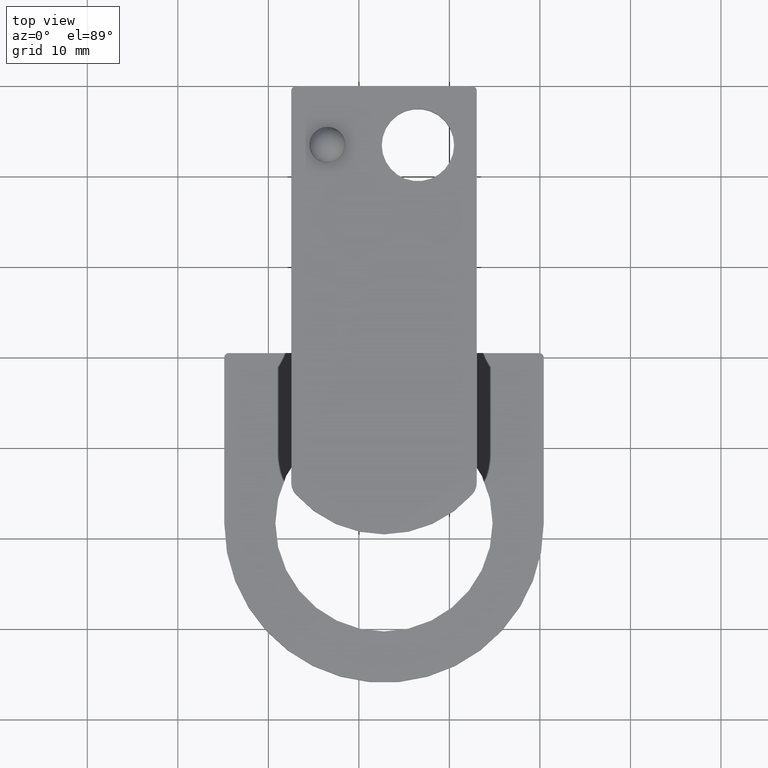
[diagram: clean part render]
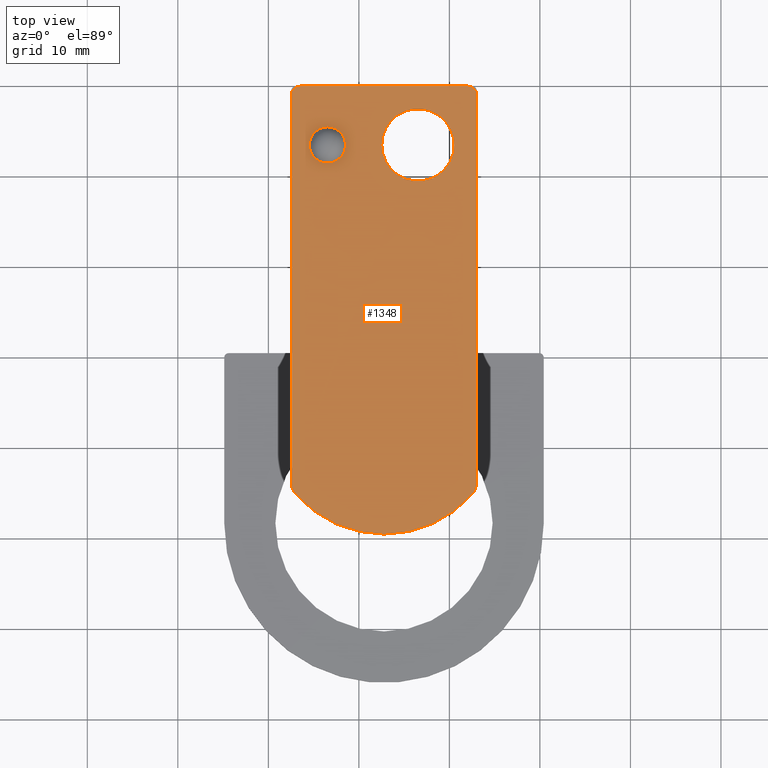
[diagram: same view with one face highlighted and labeled with its STEP entity id]
A machine part, top view. The second image highlights one B-rep face of the part: STEP entity #1348.
In plain terms, the highlighted planar face has unit normal (0, 0, 1).
Its self-contained STEP definition (entity closure, byte-faithful):
#996=CARTESIAN_POINT('',(16.590537004942465,16.195594190789066,1.500000000000000));
#997=VERTEX_POINT('',#996);
#998=CARTESIAN_POINT('',(17.590537004942465,15.195594190789063,1.500000000000000));
#999=VERTEX_POINT('',#998);
#1000=CARTESIAN_POINT('',(16.590537004942465,15.195594190789063,1.500000000000000));
#1001=DIRECTION('',(0.0,0.0,-1.000000000000000));
#1002=DIRECTION('',(0.707106781186548,0.707106781186548,0.0));
#1003=AXIS2_PLACEMENT_3D('',#1000,#1001,#1002);
#1004=CIRCLE('',#1003,1.000000000000000);
#1005=EDGE_CURVE('',#997,#999,#1004,.T.);
#1047=CARTESIAN_POINT('',(-1.909462995057537,16.195594190789066,1.500000000000000));
#1048=VERTEX_POINT('',#1047);
#1055=CARTESIAN_POINT('',(-1.909462995057537,16.195594190789066,1.500000000000000));
#1056=DIRECTION('',(1.0,0.0,0.0));
#1057=VECTOR('',#1056,18.500000000000004);
#1058=LINE('',#1055,#1057);
#1059=EDGE_CURVE('',#1048,#997,#1058,.T.);
#1151=CARTESIAN_POINT('',(-2.909462995057537,15.195594190789063,1.500000000000000));
#1152=VERTEX_POINT('',#1151);
#1153=CARTESIAN_POINT('',(-1.909462995057537,15.195594190789063,1.500000000000000));
#1154=DIRECTION('',(0.0,0.0,-1.0));
#1155=DIRECTION('',(-0.707106781186547,0.707106781186548,0.0));
#1156=AXIS2_PLACEMENT_3D('',#1153,#1154,#1155);
#1157=CIRCLE('',#1156,1.000000000000000);
#1158=EDGE_CURVE('',#1152,#1048,#1157,.T.);
#1179=CARTESIAN_POINT('',(2.340537004942464,9.695594190789066,1.500000000000000));
#1180=VERTEX_POINT('',#1179);
#1181=CARTESIAN_POINT('',(1.090537004942464,9.695594190789066,1.500000000000000));
#1182=DIRECTION('',(0.0,0.0,-1.0));
#1183=DIRECTION('',(-1.0,0.0,0.0));
#1184=AXIS2_PLACEMENT_3D('',#1181,#1182,#1183);
#1185=CIRCLE('',#1184,1.250000000000000);
#1186=EDGE_CURVE('',#1180,#1180,#1185,.T.);
#1196=CARTESIAN_POINT('',(15.090537004942464,9.695594190789066,1.500000000000000));
#1197=VERTEX_POINT('',#1196);
#1198=CARTESIAN_POINT('',(11.090537004942465,9.695594190789066,1.500000000000000));
#1199=DIRECTION('',(0.0,0.0,-1.0));
#1200=DIRECTION('',(-1.0,0.0,0.0));
#1201=AXIS2_PLACEMENT_3D('',#1198,#1199,#1200);
#1202=CIRCLE('',#1201,4.0);
#1203=EDGE_CURVE('',#1197,#1197,#1202,.T.);
#1217=CARTESIAN_POINT('',(17.590537004942473,-27.580221914638557,1.500000000000000));
#1218=VERTEX_POINT('',#1217);
#1219=CARTESIAN_POINT('',(17.590537004942465,15.195594190789063,1.500000000000000));
#1220=DIRECTION('',(0.0,-1.0,0.0));
#1221=VECTOR('',#1220,42.775816105427623);
#1222=LINE('',#1219,#1221);
#1223=EDGE_CURVE('',#999,#1218,#1222,.T.);
#1240=CARTESIAN_POINT('',(17.090537004942476,-28.903097570170850,1.500000000000000));
#1241=VERTEX_POINT('',#1240);
#1242=CARTESIAN_POINT('',(15.590537004942506,-27.580221914638567,1.500000000000000));
#1243=DIRECTION('',(0.0,0.0,-1.0));
#1244=DIRECTION('',(-0.749999999999997,0.661437827766151,0.0));
#1245=AXIS2_PLACEMENT_3D('',#1242,#1243,#1244);
#1246=CIRCLE('',#1245,1.999999999999966);
#1247=EDGE_CURVE('',#1218,#1241,#1246,.T.);
#1265=CARTESIAN_POINT('',(-2.409462995057530,-28.903097570170864,1.500000000000000));
#1266=VERTEX_POINT('',#1265);
#1267=CARTESIAN_POINT('',(7.340537004942465,-20.304405809210941,1.500000000000000));
#1268=DIRECTION('',(0.0,0.0,-1.0));
#1269=DIRECTION('',(0.750000000000000,0.661437827766148,0.0));
#1270=AXIS2_PLACEMENT_3D('',#1267,#1268,#1269);
#1271=CIRCLE('',#1270,13.0);
#1272=EDGE_CURVE('',#1241,#1266,#1271,.T.);
#1290=CARTESIAN_POINT('',(-2.909462995057528,-27.580221914638571,1.500000000000000));
#1291=VERTEX_POINT('',#1290);
#1292=CARTESIAN_POINT('',(-0.909462995057510,-27.580221914638567,1.500000000000000));
#1293=DIRECTION('',(0.0,0.0,-1.0));
#1294=DIRECTION('',(1.0,0.0,0.0));
#1295=AXIS2_PLACEMENT_3D('',#1292,#1293,#1294);
#1296=CIRCLE('',#1295,2.000000000000018);
#1297=EDGE_CURVE('',#1266,#1291,#1296,.T.);
#1318=CARTESIAN_POINT('',(-2.909462995057528,-27.580221914638571,1.500000000000000));
#1319=DIRECTION('',(0.0,1.0,0.0));
#1320=VECTOR('',#1319,42.775816105427637);
#1321=LINE('',#1318,#1320);
#1322=EDGE_CURVE('',#1291,#1152,#1321,.T.);
#1327=CARTESIAN_POINT('',(7.340537004942468,-7.090099953186208,1.500000000000000));
#1328=DIRECTION('',(0.0,0.0,1.0));
#1329=DIRECTION('',(1.0,0.0,0.0));
#1330=AXIS2_PLACEMENT_3D('',#1327,#1328,#1329);
#1331=PLANE('',#1330);
#1332=ORIENTED_EDGE('',*,*,#1005,.F.);
#1333=ORIENTED_EDGE('',*,*,#1059,.F.);
#1334=ORIENTED_EDGE('',*,*,#1158,.F.);
#1335=ORIENTED_EDGE('',*,*,#1322,.F.);
#1336=ORIENTED_EDGE('',*,*,#1297,.F.);
#1337=ORIENTED_EDGE('',*,*,#1272,.F.);
#1338=ORIENTED_EDGE('',*,*,#1247,.F.);
#1339=ORIENTED_EDGE('',*,*,#1223,.F.);
#1340=EDGE_LOOP('',(#1332,#1333,#1334,#1335,#1336,#1337,#1338,#1339));
#1341=FACE_OUTER_BOUND('',#1340,.T.);
#1342=ORIENTED_EDGE('',*,*,#1186,.T.);
#1343=EDGE_LOOP('',(#1342));
#1344=FACE_BOUND('',#1343,.T.);
#1345=ORIENTED_EDGE('',*,*,#1203,.T.);
#1346=EDGE_LOOP('',(#1345));
#1347=FACE_BOUND('',#1346,.T.);
#1348=ADVANCED_FACE('',(#1341,#1344,#1347),#1331,.T.);